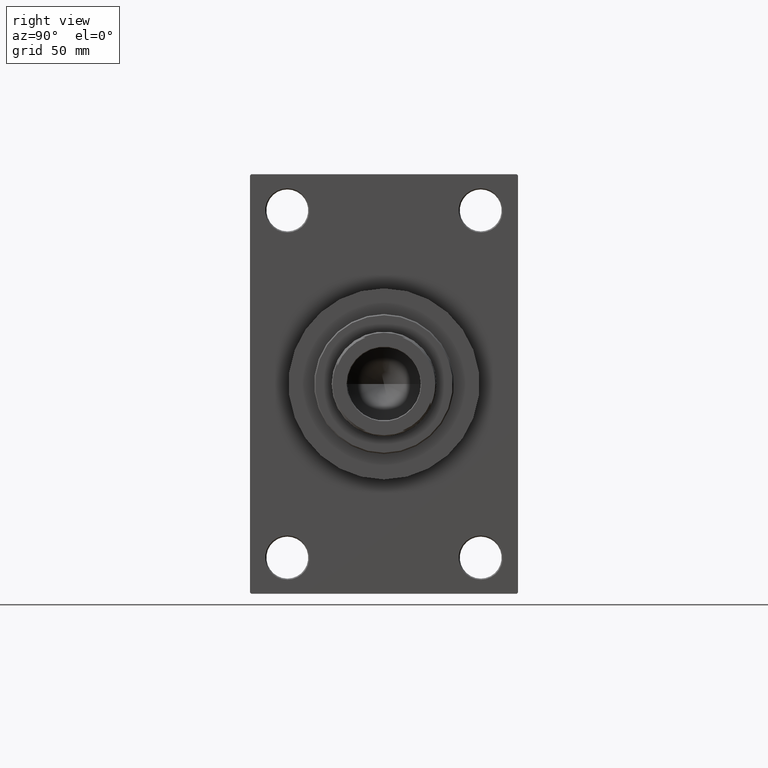
[diagram: clean part render]
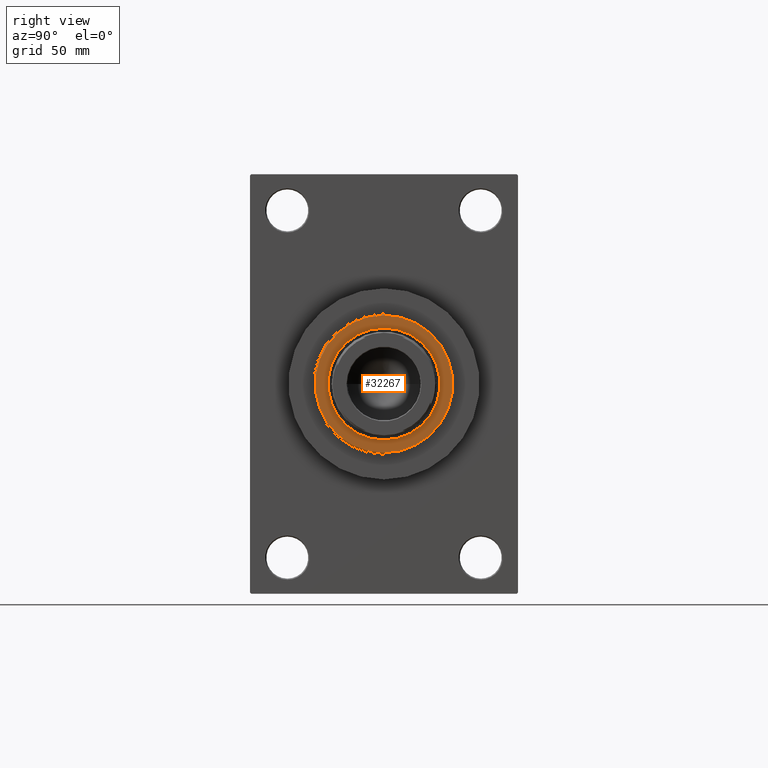
[diagram: same view with one face highlighted and labeled with its STEP entity id]
A machine part, right view. The second image highlights one B-rep face of the part: STEP entity #32267.
In plain terms, the highlighted planar face has unit normal (1, 0, 0).
Its self-contained STEP definition (entity closure, byte-faithful):
#1056 = CIRCLE ( 'NONE', #38025, 29.50000000000000000 ) ;
#2926 = EDGE_LOOP ( 'NONE', ( #30977, #14831 ) ) ;
#10117 = CIRCLE ( 'NONE', #25518, 24.00000000000000355 ) ;
#10942 = CIRCLE ( 'NONE', #25580, 24.00000000000000355 ) ;
#11114 = AXIS2_PLACEMENT_3D ( 'NONE', #38694, #20372, #41835 ) ;
#12000 = DIRECTION ( 'NONE',  ( 0.000000000000000000, 0.000000000000000000, 1.000000000000000000 ) ) ;
#13122 = FACE_BOUND ( 'NONE', #2926, .T. ) ;
#14812 = CIRCLE ( 'NONE', #41027, 29.50000000000000000 ) ;
#14831 = ORIENTED_EDGE ( 'NONE', *, *, #38804, .F. ) ;
#17781 = DIRECTION ( 'NONE',  ( 0.000000000000000000, 0.000000000000000000, 1.000000000000000000 ) ) ;
#20372 = DIRECTION ( 'NONE',  ( 0.000000000000000000, 0.000000000000000000, 1.000000000000000000 ) ) ;
#22064 = CARTESIAN_POINT ( 'NONE',  ( 0.000000000000000000, 0.000000000000000000, 52.25999999999999801 ) ) ;
#23007 = EDGE_CURVE ( 'NONE', #41081, #24530, #1056, .T. ) ;
#23338 = CARTESIAN_POINT ( 'NONE',  ( 0.000000000000000000, 0.000000000000000000, 52.25999999999999801 ) ) ;
#23509 = FACE_OUTER_BOUND ( 'NONE', #25185, .T. ) ;
#24209 = EDGE_CURVE ( 'NONE', #31464, #46265, #10942, .T. ) ;
#24530 = VERTEX_POINT ( 'NONE', #36714 ) ;
#25185 = EDGE_LOOP ( 'NONE', ( #35708, #44098 ) ) ;
#25443 = DIRECTION ( 'NONE',  ( 1.000000000000000000, 0.000000000000000000, 0.000000000000000000 ) ) ;
#25518 = AXIS2_PLACEMENT_3D ( 'NONE', #26084, #26566, #37180 ) ;
#25580 = AXIS2_PLACEMENT_3D ( 'NONE', #23338, #12000, #45753 ) ;
#26084 = CARTESIAN_POINT ( 'NONE',  ( 0.000000000000000000, 0.000000000000000000, 52.25999999999999801 ) ) ;
#26566 = DIRECTION ( 'NONE',  ( 0.000000000000000000, 0.000000000000000000, 1.000000000000000000 ) ) ;
#27961 = CARTESIAN_POINT ( 'NONE',  ( 0.000000000000000000, 0.000000000000000000, 52.25999999999999801 ) ) ;
#30977 = ORIENTED_EDGE ( 'NONE', *, *, #24209, .F. ) ;
#31464 = VERTEX_POINT ( 'NONE', #45918 ) ;
#32267 = ADVANCED_FACE ( 'NONE', ( #13122, #23509 ), #42307, .T. ) ;
#32996 = CARTESIAN_POINT ( 'NONE',  ( 29.50000000000000000, 3.643324227463375391E-15, 52.25999999999999801 ) ) ;
#34213 = EDGE_CURVE ( 'NONE', #24530, #41081, #14812, .T. ) ;
#35708 = ORIENTED_EDGE ( 'NONE', *, *, #34213, .T. ) ;
#36714 = CARTESIAN_POINT ( 'NONE',  ( -29.50000000000000000, 0.000000000000000000, 52.25999999999999801 ) ) ;
#37180 = DIRECTION ( 'NONE',  ( 1.000000000000000000, 0.000000000000000000, 0.000000000000000000 ) ) ;
#38025 = AXIS2_PLACEMENT_3D ( 'NONE', #27961, #17781, #39991 ) ;
#38694 = CARTESIAN_POINT ( 'NONE',  ( 0.000000000000000000, 0.000000000000000000, 52.25999999999999801 ) ) ;
#38804 = EDGE_CURVE ( 'NONE', #46265, #31464, #10117, .T. ) ;
#39991 = DIRECTION ( 'NONE',  ( 1.000000000000000000, 0.000000000000000000, 0.000000000000000000 ) ) ;
#41027 = AXIS2_PLACEMENT_3D ( 'NONE', #22064, #44708, #25443 ) ;
#41081 = VERTEX_POINT ( 'NONE', #32996 ) ;
#41835 = DIRECTION ( 'NONE',  ( 1.000000000000000000, 0.000000000000000000, -0.000000000000000000 ) ) ;
#42307 = PLANE ( 'NONE',  #11114 ) ;
#44098 = ORIENTED_EDGE ( 'NONE', *, *, #23007, .T. ) ;
#44708 = DIRECTION ( 'NONE',  ( 0.000000000000000000, 0.000000000000000000, 1.000000000000000000 ) ) ;
#45753 = DIRECTION ( 'NONE',  ( 1.000000000000000000, 0.000000000000000000, 0.000000000000000000 ) ) ;
#45918 = CARTESIAN_POINT ( 'NONE',  ( 24.00000000000000355, 0.000000000000000000, 52.25999999999999801 ) ) ;
#46265 = VERTEX_POINT ( 'NONE', #46532 ) ;
#46532 = CARTESIAN_POINT ( 'NONE',  ( -24.00000000000000355, 2.939152317953648289E-15, 52.25999999999999801 ) ) ;